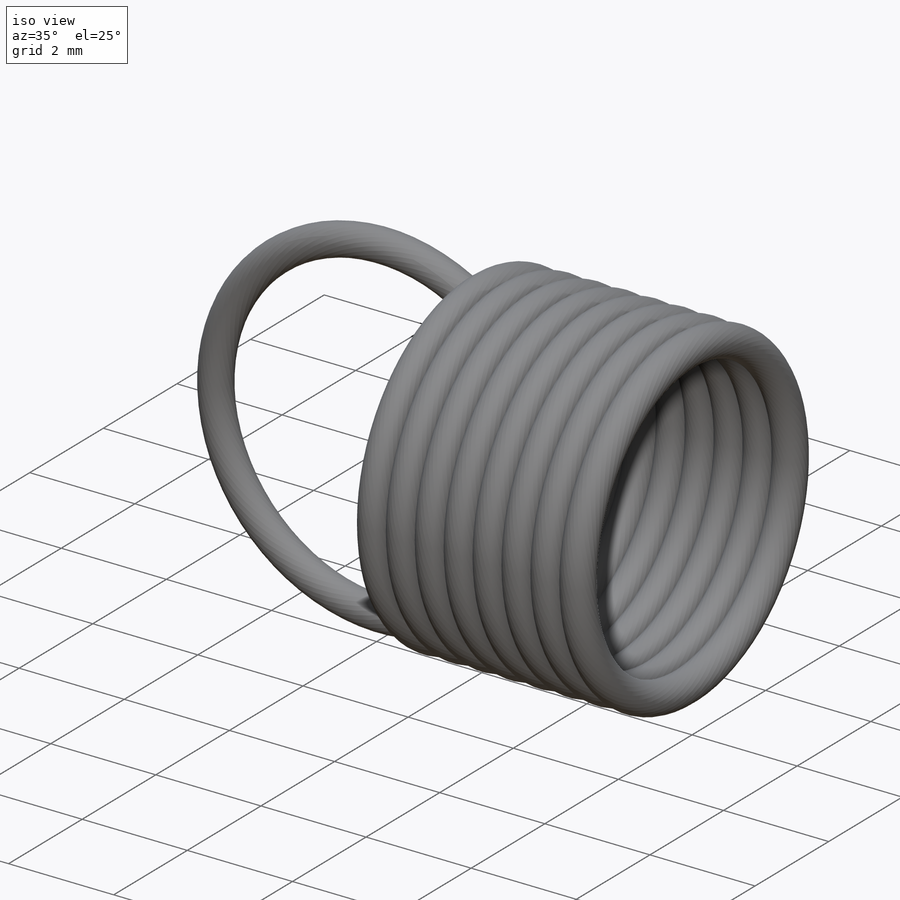
[diagram: iso view]
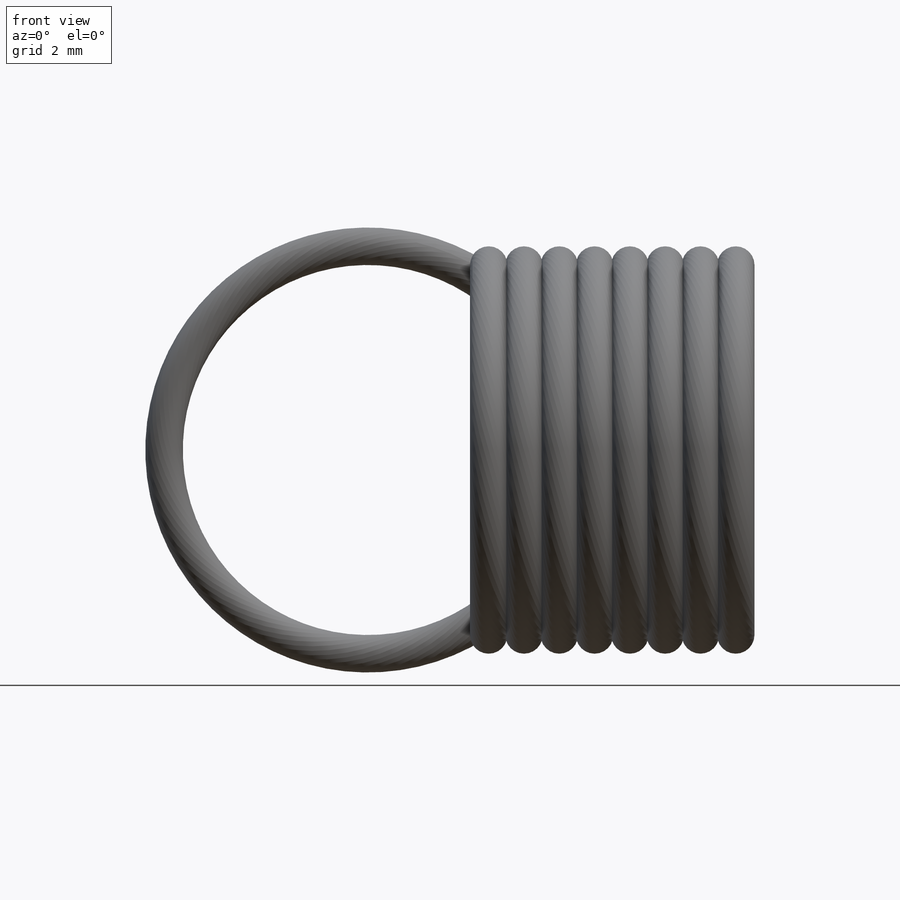
[diagram: front view]
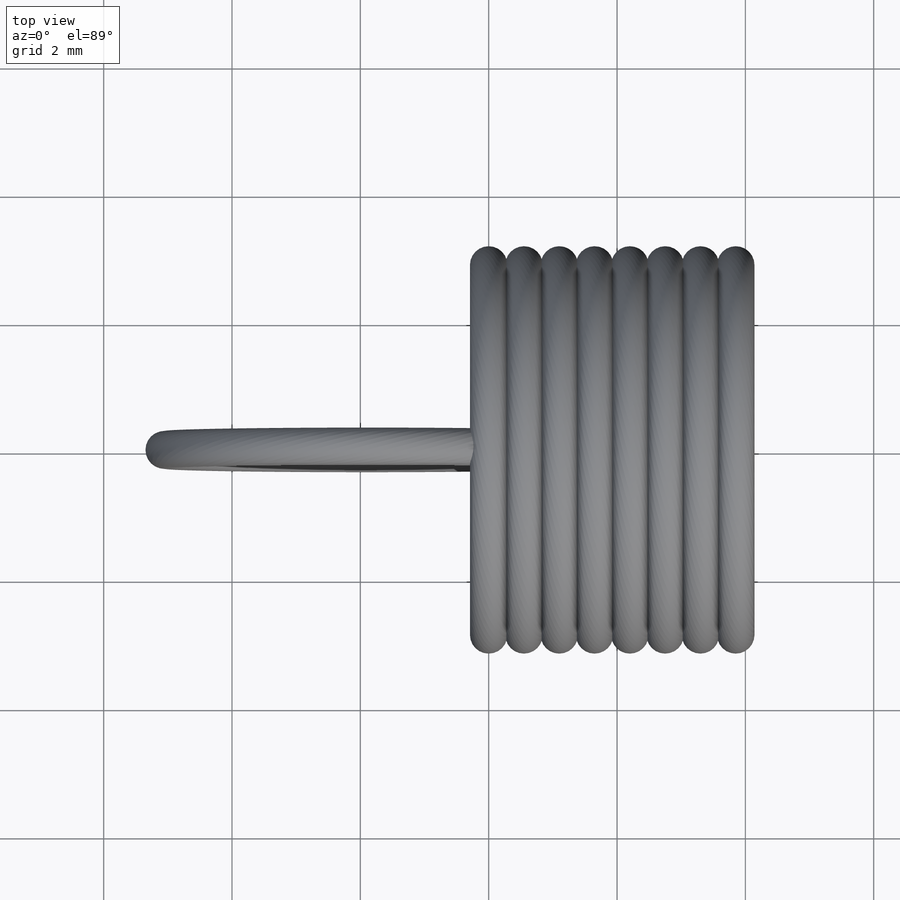
[diagram: top view]
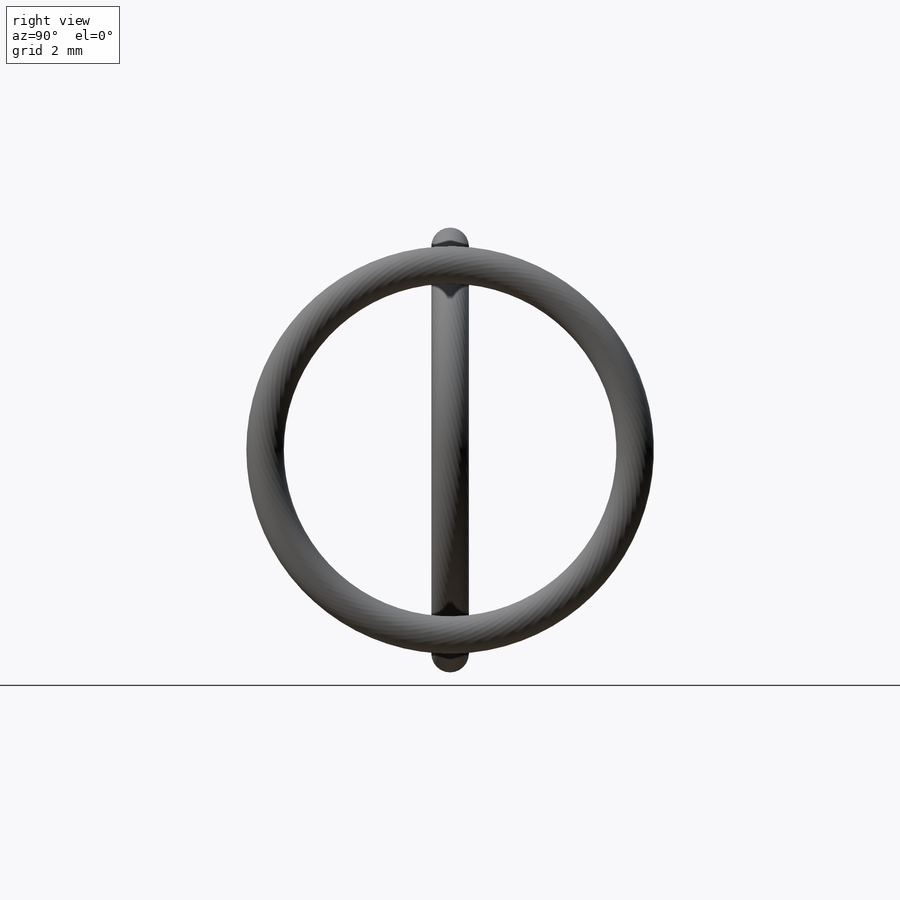
[diagram: right view]
SOLIDWORKS PART (.sldprt)
format: sldprt  version: not decoded by parser v0  size: 1,376,768 bytes
history: native  units: mm
features: sketch x6, revolve x3, material x1, pattern_linear x1 (+16 scaffold rows collapsed)
feature tree (27):
  scaffold x16  (default folders/planes/origin — collapsed)
  material  "Material <not specified>"
  sketch  "Sketch4"  dims[D1=0.5842mm D2=3.175mm]
  revolve  "Revolve2"  Angle=360deg
  sketch  "Sketch5"
  pattern_linear  "LPattern3"  Count1=28 Count2=1 Spacing1=0.55mm Spacing2=50mm
  sketch  "Sketch2"  dims[c1.D1=1.5875mm c1.D2=1.5875mm c2.D1=1.5875mm c2.D2=1.5875mm]
  sketch  "Sketch3"  dims[D1=0.5842mm D2=3.175mm]
  revolve  "Revolve1"  Angle=360deg
  sketch  "Sketch7"  dims[D1=0.5842mm D2=3.175mm]
  revolve  "Revolve3"  Angle=360deg
  sketch  "Sketch8"
decode coverage: 8 of 10 modeling features carry decoded parameters
note: suppression state not decoded; provenance and decode notes live in map.json
